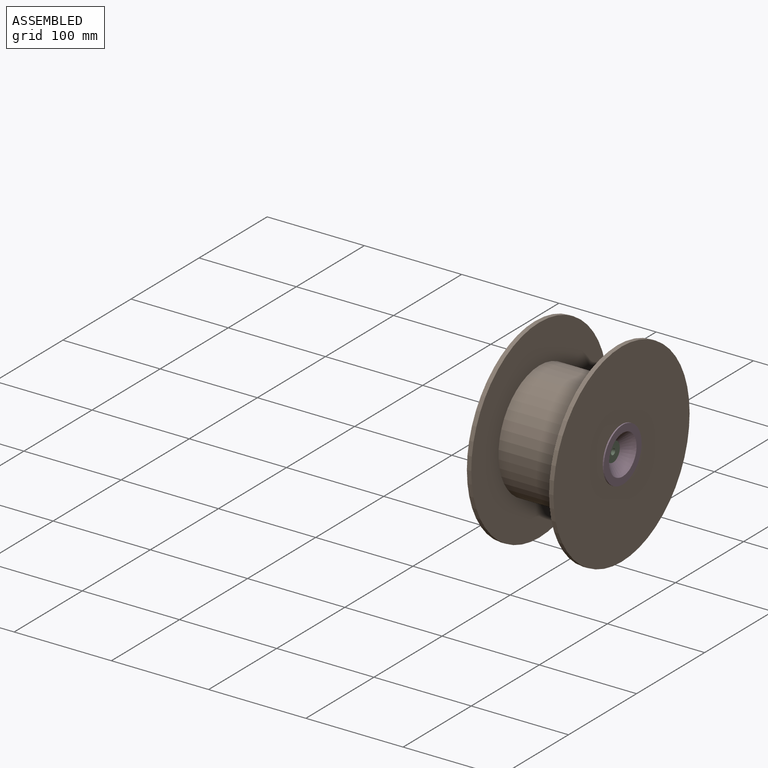
[diagram: assembled view]
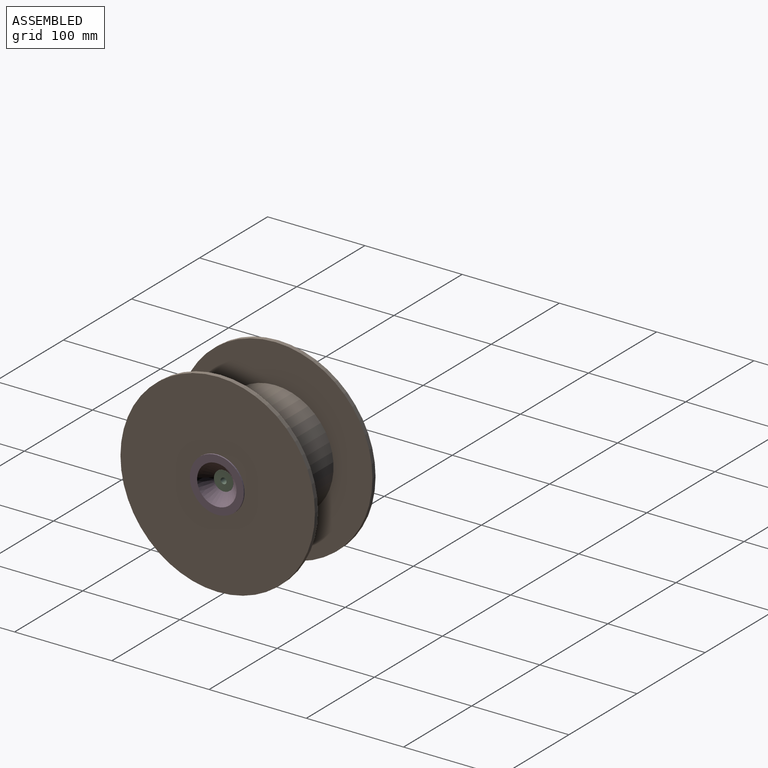
[diagram: assembled view, second angle]
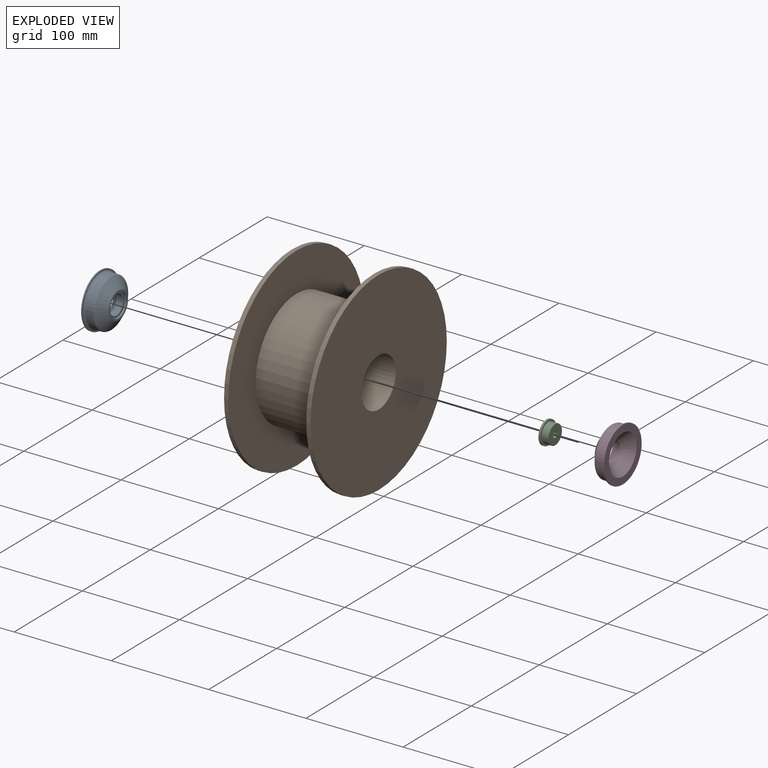
[diagram: exploded view]
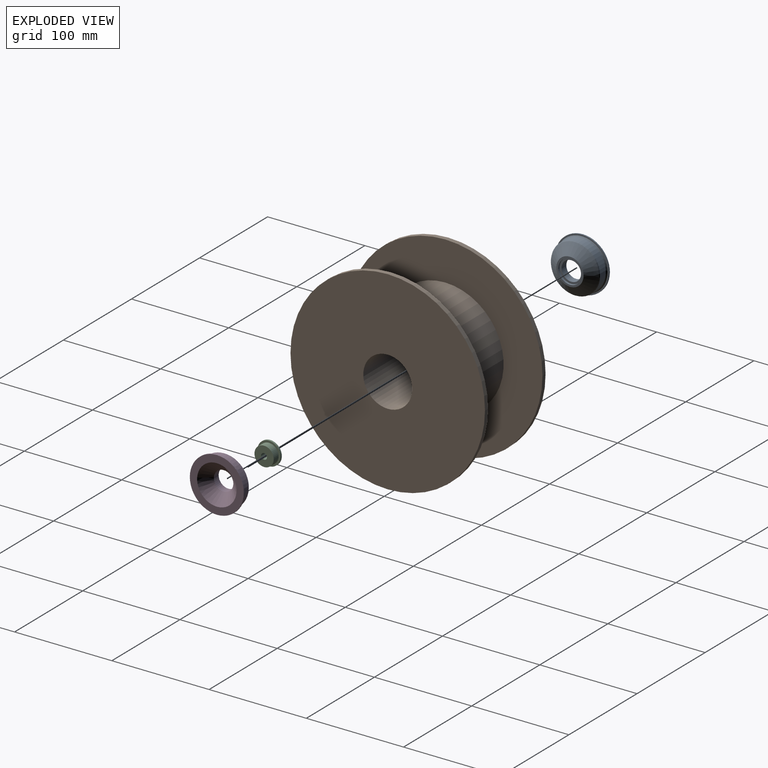
[diagram: exploded view, second angle]
ASSEMBLY  parts=4 mates=3
PART A: 12 faces, bbox 19x55.5x55.5 mm
  f0: plane 55.5x55.5mm, normal (-1,0,0), area 254.5mm2, adj f9,f11
  f1: cylinder r=25.25mm len=50.5mm, axis (-1,0,0), area 1344.2mm2, adj f10,f11
  f2: cone r=14mm half-angle=55.6deg, axis (1,0,0), area 1598.1mm2, adj f3,f10
  f3: plane 28x28mm, normal (-1,0,0), area 163.4mm2, adj f2,f4
  f4: cylinder r=12mm len=24mm, axis (-1,0,0), area 150.8mm2, adj f3,f5
  f5: plane 24x24mm, normal (-1,0,0), area 138.2mm2, adj f4,f6
  f6: cylinder r=10mm len=20mm, axis (-1,0,0), area 439.8mm2, adj f5,f7
  f7: cone r=20.25mm half-angle=45.7deg, axis (1,0,0), area 1360.9mm2, adj f6,f8
  f8: plane 55.5x55.5mm, normal (1,0,0), area 1131mm2, adj f7,f9
  f9: cylinder r=27.75mm len=55.5mm, axis (-1,0,0), area 226.7mm2, adj f0,f8
  f10: cone r=24.81mm half-angle=27.8deg, axis (1,0,0), area 146.7mm2, adj f1,f2
  f11: cone r=25.25mm half-angle=45deg, axis (1,0,0), area 228.8mm2, adj f0,f1
PART B: 8 faces, bbox 89x200x200 mm
  f0: cylinder r=100mm len=200mm, axis (-1,0,0), area 2827.4mm2, adj f1,f3
  f1: plane 200x200mm, normal (1,0,0), area 29428.8mm2, adj f0,f7
  f2: cylinder r=60mm len=120mm, axis (-1,0,0), area 30159.3mm2, adj f3,f4
  f3: plane 200x200mm, normal (-1,0,0), area 20106.2mm2, adj f0,f2
  f4: plane 200x200mm, normal (1,0,0), area 20106.2mm2, adj f2,f6
  f5: plane 200x200mm, normal (-1,0,0), area 29428.8mm2, adj f6,f7
  f6: cylinder r=100mm len=200mm, axis (-1,0,0), area 2827.4mm2, adj f4,f5
  f7: cylinder r=25.15mm len=89mm, axis (1,0,0), area 14064mm2, adj f1,f5
PART C: 6 faces, bbox 9x23.8x23.8 mm
  f0: cylinder r=11.9mm len=23.8mm, axis (-1,0,0), area 142.1mm2, adj f1,f5
  f1: plane 23.8x23.8mm, normal (-1,0,0), area 415.7mm2, adj f0,f2
  f2: cylinder r=3.05mm len=9mm, axis (-1,0,0), area 172.5mm2, adj f1,f3
  f3: plane 19.8x19.8mm, normal (1,0,0), area 278.7mm2, adj f2,f4
  f4: cylinder r=9.9mm len=19.8mm, axis (-1,0,0), area 441.6mm2, adj f3,f5
  f5: plane 23.8x23.8mm, normal (1,0,0), area 137mm2, adj f0,f4
PART D: same geometry as A
PLACE A rot(axis=(0,1,0),180deg) t=(-26.8,0,0)mm
PLACE B at identity fixed
PLACE C t=(26.85,0,0)mm
PLACE D t=(26.8,0,0)mm
MATE fastened D.f1 <-> B.f7  axis (-1,0,0) through (44.5,0,0)mm
MATE fastened A.f1 <-> B.f0  axis (1,0,0) through (-44.5,0,0)mm
MATE fastened C.f0 <-> D.f1  axis (-1,0,0) through (32.3,0,0)mm
